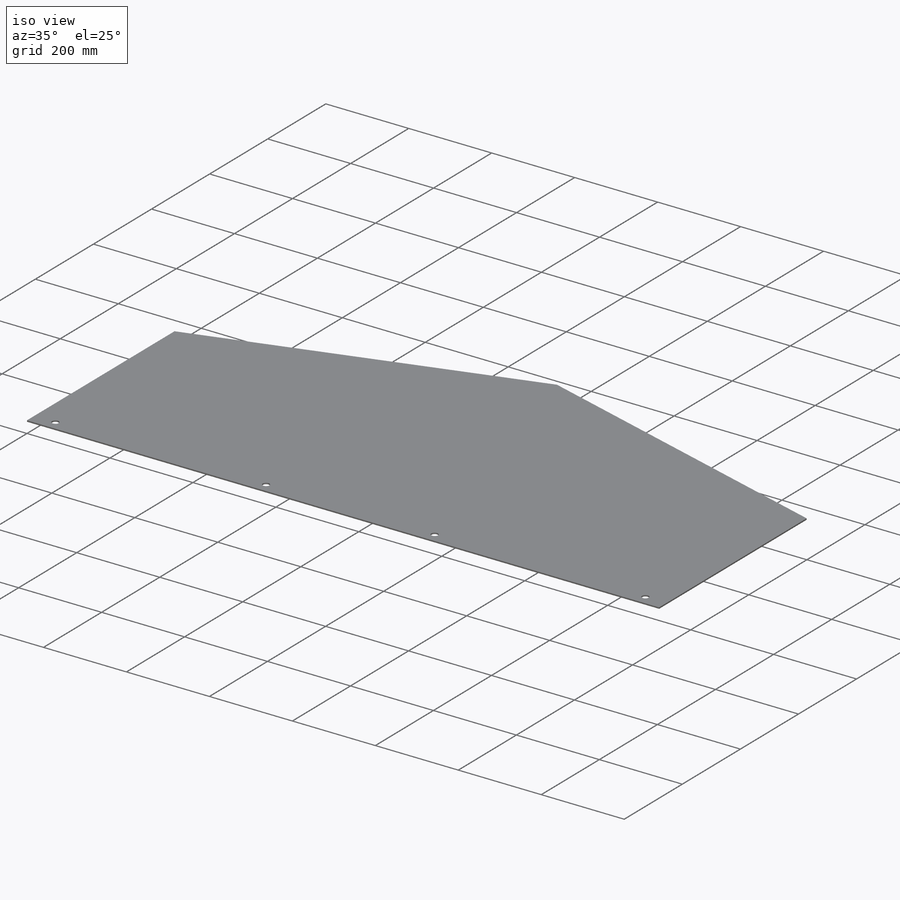
[diagram: iso view]
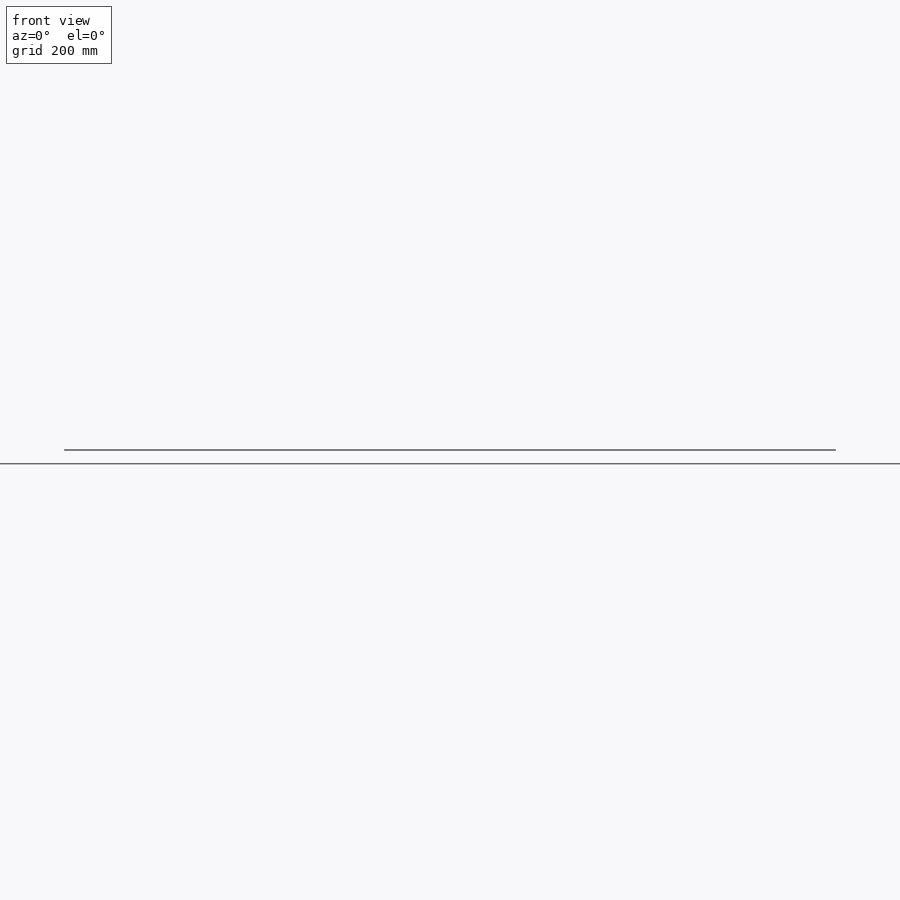
[diagram: front view]
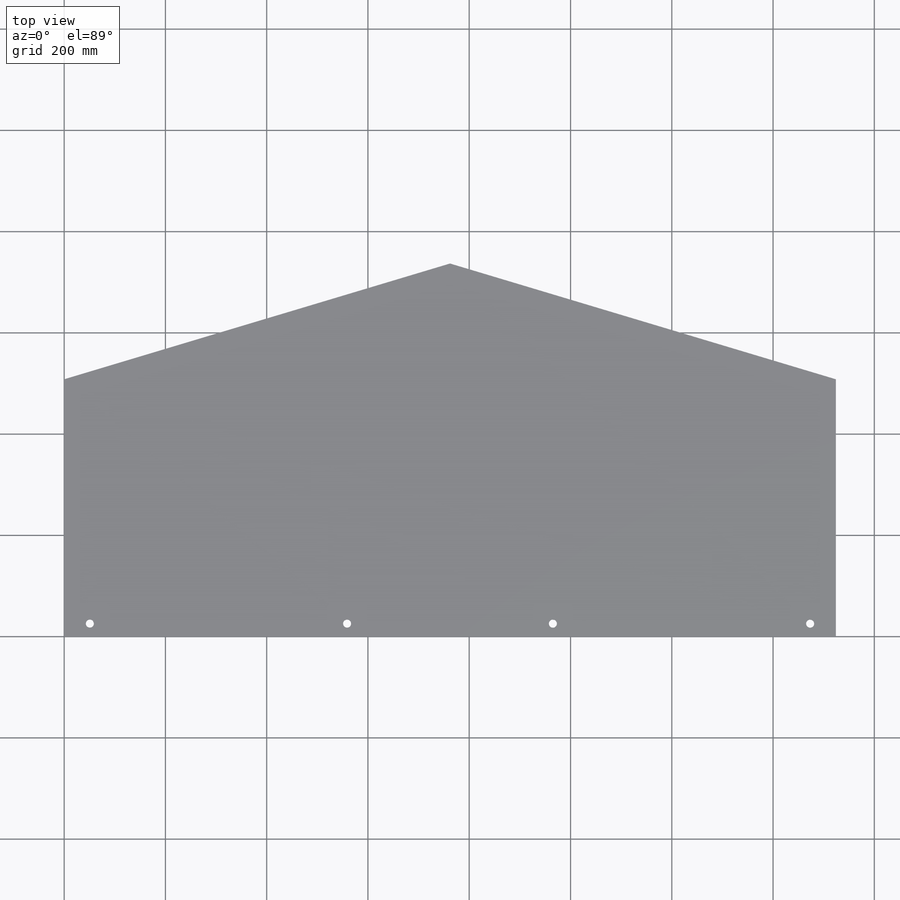
[diagram: top view]
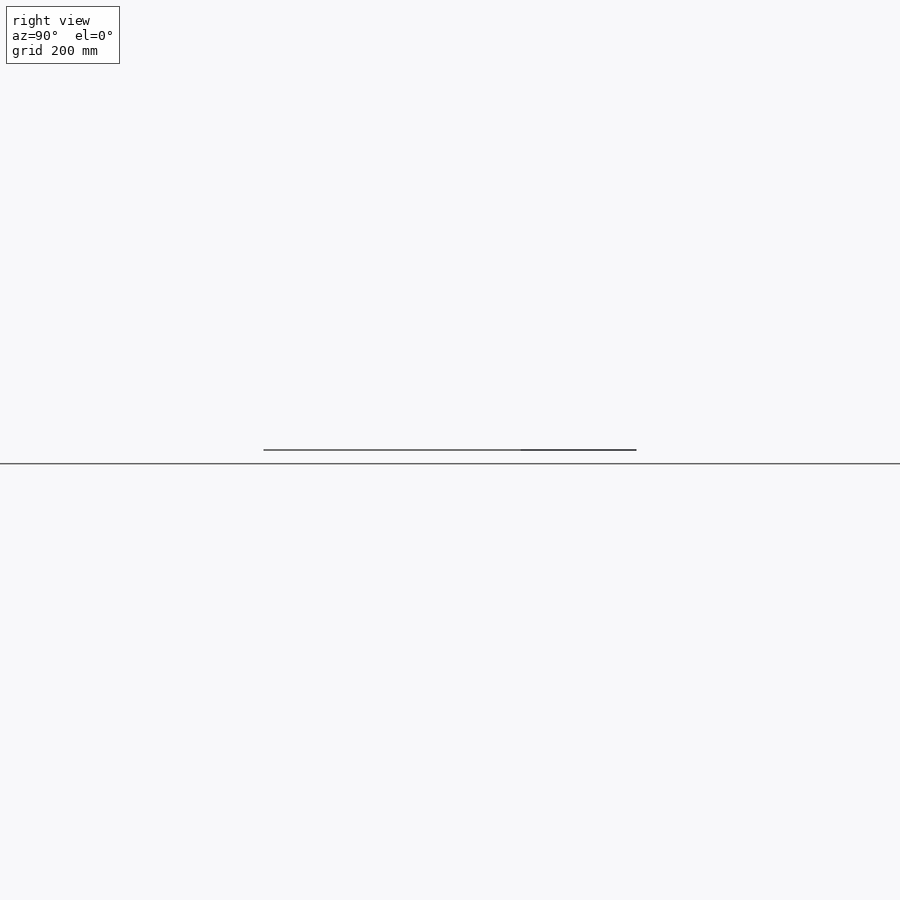
[diagram: right view]
SOLIDWORKS PART (.sldprt)
format: sldprt  version: not decoded by parser v0  size: 149,504 bytes
history: native  units: mm
features: sketch x3, material x1, extrude x1, hole x1 (+11 scaffold rows collapsed)
feature tree (17):
  scaffold x11  (default folders/planes/origin — collapsed)
  material  "Material <not specified>"
  sketch  "Sketch1"  dims[c1.D1=1524.0mm c1.D2=508.0mm c1.D3=762.0mm c1.D4=508.0mm c2.D4=~108.434949deg c3.D4=508.0mm c4.D4=~108.434949deg c4.D3=736.6mm]
  extrude  "Boss-Extrude1"  Depth=3.175mm
  hole  "5/8 (0.625) Diameter Hole1"  Diameter=15.875mm Depth=3.175mm
  sketch  "Sketch3"  dims[c1.D1=25.4mm c1.D2=508.0mm c1.D3=50.8mm c1.D4=50.8mm c1.D5=508.0mm c2.D4=406.4mm]
  sketch  "Sketch2"  dims[hole-wizard template sketch: 60 standard entries collapsed; hole parameters kept: c18.Thru Hole Depth=3.175mm]
decode coverage: 5 of 5 modeling features carry decoded parameters
note: ~ marks probable driven/reference dimensions
note: suppression state not decoded; provenance and decode notes live in map.json
